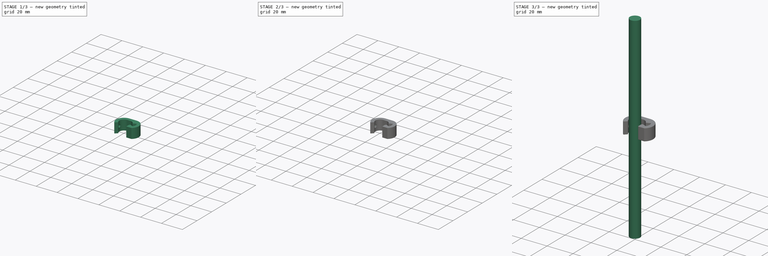
[diagram: build sequence overview — one tinted view per stage of 3, left to right]
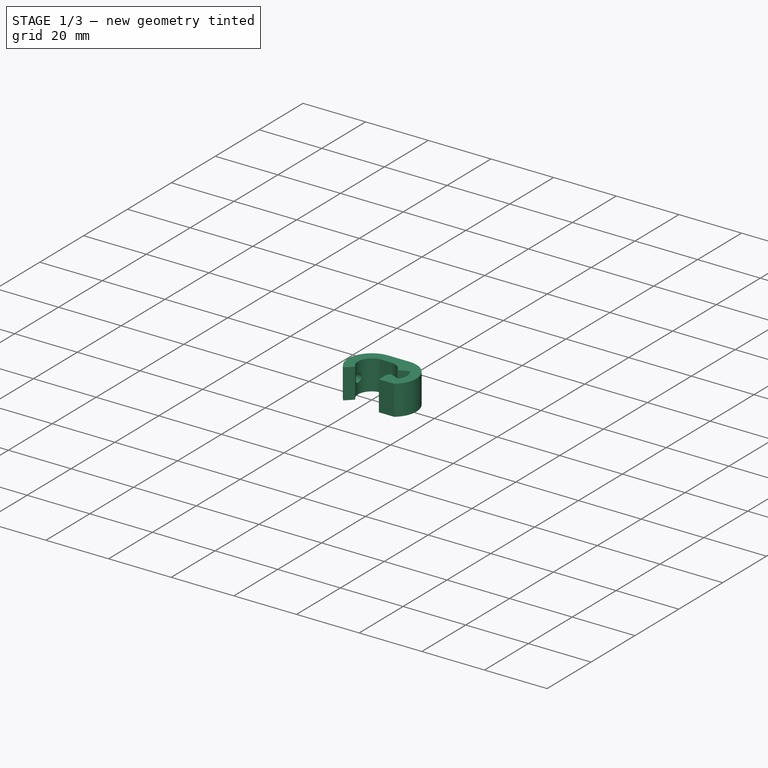
[diagram: stage 1 of 3 — iso view after this stage's code; geometry added in this stage tinted green]
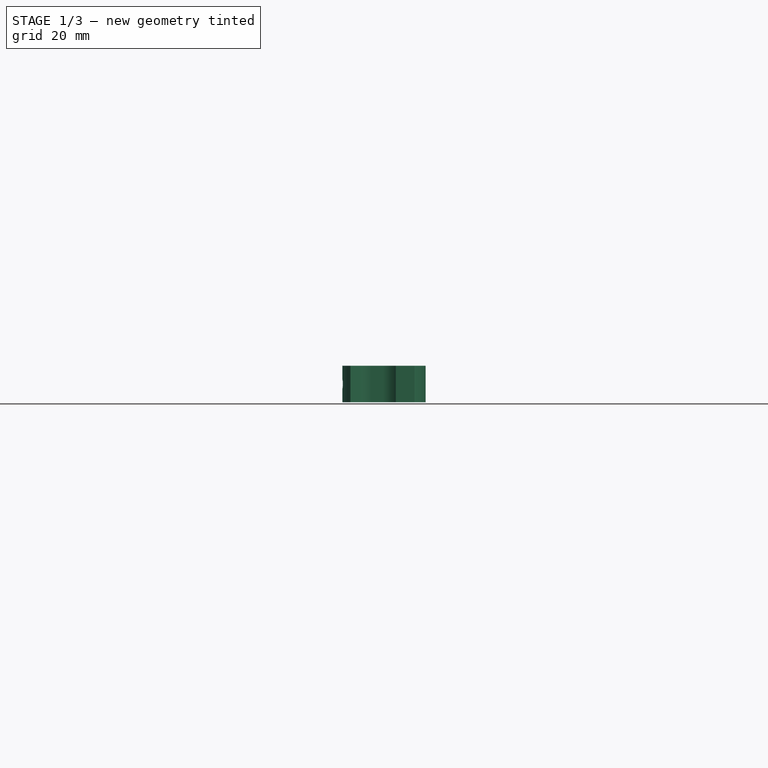
[diagram: stage 1 of 3 — front view after this stage's code; geometry added in this stage tinted green]
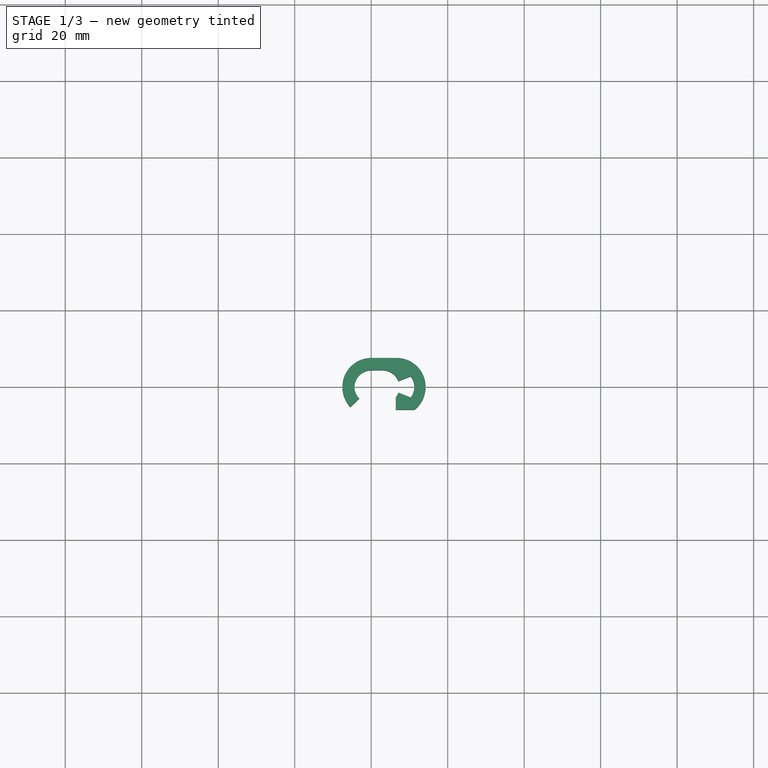
[diagram: stage 1 of 3 — top view after this stage's code; geometry added in this stage tinted green]
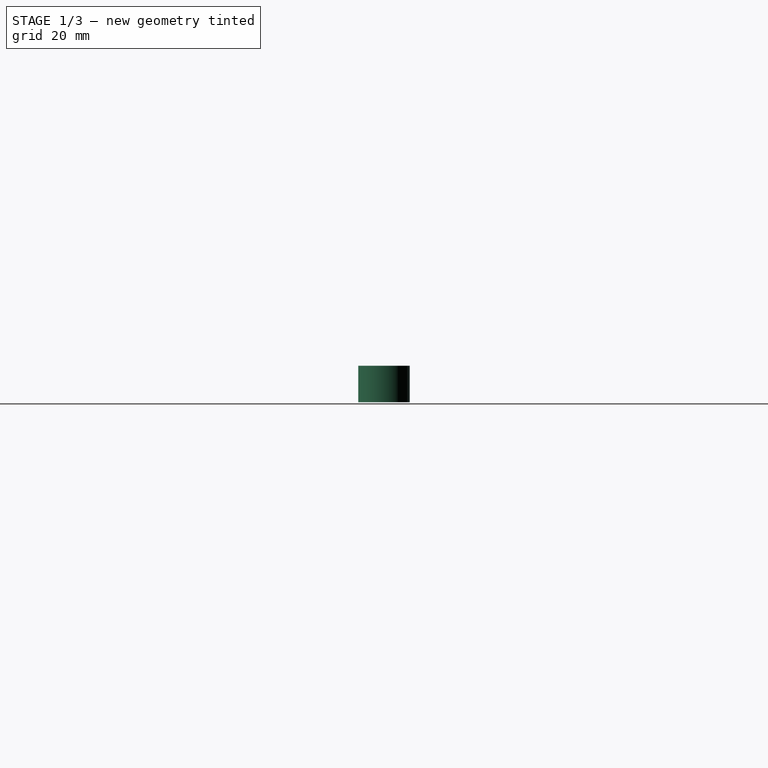
[diagram: stage 1 of 3 — right view after this stage's code; geometry added in this stage tinted green]
FCSTD DOCUMENT  (FreeCAD 0.20R29410 (Git))
Label: Stereotax rod fiber clip v2
License: All rights reserved
LicenseURL: http://en.wikipedia.org/wiki/All_rights_reserved
objects: Sketcher::SketchObject×4, PartDesign::Pad×2, PartDesign::Body×2, Spreadsheet::Sheet×1, PartDesign::Pocket×1, PartDesign::SubtractiveHelix×1, PartDesign::Fillet×1
note: 16 computed .brp shape members not serialized (recipe doc carries the construction recipe); baked Part::Feature solids carry a one-line shape summary decoded from their .brp

FEATURE [PartDesign::Body] Body002  label="Rod"
  Group = -> [Sketch011,Pad003]
  Origin = -> Origin002
  Tip = -> Pad003
FEATURE [Sketcher::SketchObject] Sketch012  label="Clamp profile"
  FullyConstrained = false
  MapMode = 5
  Support = -> [XY_Plane003]
  expr: Constraints[13] = <<ss>>.rodHoleDiameter
  expr: Constraints[24] = 0.12" * 2
  expr: Constraints[26] = <<ss>>.rodDiameter
  expr: Constraints[30] = <<ss>>.fiberJacketDiameter
  expr: Constraints[32] = <<ss>>.paddingThickness
  expr: Constraints[44] = <<ss>>.fiberJacketDiameter * 0.95
  expr: Constraints[49] = <<ss>>.rodDiameter * 0.75
  expr: Constraints[66] = <<ss>>.fiberJacketDiameter * 1.5
  expr: Constraints[69] = <<ss>>.fiberJacketDiameter * 1.25
  expr: Constraints[6] = <<ss>>.fiberJacketDiameter * 1.25
  sketch-geometry (37):
    g0: ArcOfCircle CenterX=0 CenterY=0 CenterZ=0 NormalX=0 NormalY=0 NormalZ=1 AngleXU=0 Radius=4.36563 StartAngle=1.5708 EndAngle=3.91445
    g1: ArcOfCircle CenterX=0 CenterY=0 CenterZ=0 NormalX=0 NormalY=0 NormalZ=1 AngleXU=0 Radius=7.54063 StartAngle=1.5708 EndAngle=3.91445
    g2: LineSegment StartX=-3.12544 StartY=-3.048 StartZ=0 EndX=-5.39849 EndY=-5.26473 EndZ=0
    g3: LineSegment StartX=0 StartY=7.54063 StartZ=0 EndX=3.01625 EndY=7.54063 EndZ=0
    g4: LineSegment StartX=3e-16 StartY=4.36563 StartZ=0 EndX=3.01625 EndY=4.36563 EndZ=0
    g5: ArcOfCircle CenterX=3.01625 CenterY=0 CenterZ=0 NormalX=0 NormalY=0 NormalZ=1 AngleXU=0 Radius=4.36563 StartAngle=0.352723 EndAngle=1.5708
    g6: LineSegment StartX=3.01625 StartY=7.54063 StartZ=0 EndX=3.01625 EndY=0 EndZ=0
    g7: LineSegment StartX=0 StartY=0 StartZ=0 EndX=3.01625 EndY=0 EndZ=0
    g8: LineSegment StartX=0 StartY=7.54063 StartZ=0 EndX=0 EndY=0 EndZ=0
    g9: GeomPoint X=-3.12544 Y=3.048 Z=0
    g10: LineSegment StartX=-3.12544 StartY=3.048 StartZ=0 EndX=-3.12544 EndY=-3.048 EndZ=0
    g11: Circle CenterX=2.52779 CenterY=0 CenterZ=0 NormalX=0 NormalY=0 NormalZ=1 AngleXU=0 Radius=3.96875
    g12: Circle CenterX=8.58838 CenterY=0 CenterZ=0 NormalX=0 NormalY=0 NormalZ=1 AngleXU=0 Radius=1.2065
    g13: LineSegment StartX=8.58838 StartY=0 StartZ=0 EndX=7.38188 EndY=0 EndZ=0
    g14: ArcOfCircle CenterX=6.69766 CenterY=-4e-16 CenterZ=0 NormalX=0 NormalY=0 NormalZ=1 AngleXU=0 Radius=2.97656 StartAngle=5.62965 EndAngle=6.93672
    g15: LineSegment StartX=9.06087 StartY=1.80975 StartZ=0 EndX=10.3212 EndY=2.77495 EndZ=0
    g16: LineSegment StartX=9.06087 StartY=-1.80975 StartZ=0 EndX=10.3212 EndY=-2.77495 EndZ=0
    g17: ArcOfCircle CenterX=6.69766 CenterY=-4e-16 CenterZ=0 NormalX=0 NormalY=0 NormalZ=1 AngleXU=0 Radius=7.54063 StartAngle=5.37392 EndAngle=7.85398
    g18: ArcOfCircle CenterX=6.69766 CenterY=-4e-16 CenterZ=0 NormalX=0 NormalY=0 NormalZ=1 AngleXU=0 Radius=4.56406 StartAngle=5.62965 EndAngle=6.93672
    g19: LineSegment StartX=7.11311 StartY=1.50813 StartZ=0 EndX=10.3212 EndY=2.77495 EndZ=0
    g20: LineSegment StartX=7.11311 StartY=-1.50812 StartZ=0 EndX=10.3212 EndY=-2.77495 EndZ=0
    g21: GeomPoint X=9.67423 Y=0 Z=0
    g22: ArcOfCircle CenterX=3.01625 CenterY=0 CenterZ=0 NormalX=0 NormalY=0 NormalZ=1 AngleXU=0 Radius=4.36563 StartAngle=5.93046 EndAngle=6.63591
    g23: LineSegment StartX=7.38188 StartY=0 StartZ=0 EndX=9.67423 EndY=0 EndZ=0
    g24: GeomPoint X=9.79488 Y=0 Z=0
    g25: ArcOfCircle CenterX=3.01625 CenterY=0 CenterZ=0 NormalX=0 NormalY=0 NormalZ=1 AngleXU=0 Radius=4.36563 StartAngle=5.61266 EndAngle=5.93046
    g26: LineSegment StartX=6.43669 StartY=-2.7128 StartZ=0 EndX=-3.12544 EndY=-3.048 EndZ=0
    g27: LineSegment StartX=10.3212 StartY=-2.77495 StartZ=0 EndX=10.3212 EndY=-5.94995 EndZ=0
    g28: LineSegment StartX=9.06087 StartY=1.80975 StartZ=0 EndX=9.06087 EndY=-1.80975 EndZ=0
    g29: LineSegment StartX=7.11311 StartY=1.50813 StartZ=0 EndX=7.11311 EndY=-1.50812 EndZ=0
    g30: LineSegment StartX=3.01625 StartY=7.54063 StartZ=0 EndX=6.69766 EndY=7.54063 EndZ=0
    g31: LineSegment StartX=6.43669 StartY=-5.94995 StartZ=0 EndX=11.3301 EndY=-5.94995 EndZ=0
    g32: LineSegment StartX=6.43669 StartY=-2.7128 StartZ=0 EndX=3.42044 EndY=-2.7128 EndZ=0
    g33: Circle CenterX=0 CenterY=0 CenterZ=0 NormalX=0 NormalY=0 NormalZ=1 AngleXU=0 Radius=3.96875
    g34: LineSegment StartX=0 StartY=0 StartZ=0 EndX=3.65721 EndY=-1.54137 EndZ=0
    g35: LineSegment StartX=3.65721 StartY=-1.54137 StartZ=0 EndX=6.43669 EndY=-2.7128 EndZ=0
    g36: LineSegment StartX=6.43669 StartY=-2.7128 StartZ=0 EndX=6.43669 EndY=-5.94995 EndZ=0
  constraints (97):
    c: Coincident(g2,g0)
    c: Coincident(g2,g1)
    c: Coincident(g3,g1)
    c: Horizontal(g3)
    c: Coincident(g4,g0)
    c: Horizontal(g4)
    c: DistanceX(g3,g3) = 3.01625
    c: Coincident(g5,g4)
    c: Coincident(g6,g3)
    c: Vertical(g6)
    c: PointOnObject(g4,g6)
    c: Perpendicular(g1,g2)
    c: Distance(g2) = 3.175
    c: Diameter(g0) = 8.73125
    c: Coincident(g7,g1)
    c: Horizontal(g7)
    c: Coincident(g8,g1)
    c: Coincident(g8,g1)
    c: Vertical(g8)
    c: PointOnObject(g0,g8)
    c: Coincident(g0,g1)
    c: Symmetric(g9,g0,g7)
    c: Coincident(g10,g9)
    c: Coincident(g10,g0)
    c: DistanceY(g10,g10) = 6.096
    c: PointOnObject(g11,g7)
    c: Diameter(g11) = 7.9375
    c: Coincident(g13,g12)
    c: PointOnObject(g13,g12)
    c: Horizontal(g13)
    c: Diameter(g12) = 2.413
    c: Coincident(g16,g14)
    c: Distance(g15) = 1.5875
    c: Coincident(g14,g15)
    c: Coincident(g18,g16)
    c: Coincident(g18,g15)
    c: Perpendicular(g14,g15)
    c: Perpendicular(g14,g16)
    c: Coincident(g19,g5)
    c: Symmetric(g14,g14,g7)
    c: PointOnObject(g21,g14)
    c: PointOnObject(g21,g7)
    c: Coincident(g22,g5)
    c: Coincident(g23,g21)
    c: DistanceX(g23,g23) = 2.29235
    c: Coincident(g15,g19)
    c: Coincident(g16,g20)
    c: Coincident(g18,g17)
    c: Coincident(g17,g14)
    c: Diameter(g14) = 5.95312
    c: PointOnObject(g24,g12)
    c: PointOnObject(g24,g7)
    c: Coincident(g6,g7)
    c: Coincident(g5,g22)
    c: PointOnObject(g5,g7)
    c: Equal(g0,g5)
    c: Equal(g17,g1)
    c: Coincident(g25,g5)
    c: Coincident(g25,g22)
    c: Coincident(g26,g25)
    c: Coincident(g26,g0)
    c: Coincident(g20,g22)
    c: Coincident(g27,g18)
    c: Vertical(g27)
    c: Coincident(g28,g14)
    c: Coincident(g28,g14)
    c: DistanceY(g28,g28) = 3.6195
    c: Coincident(g29,g5)
    c: Coincident(g29,g20)
    c: Distance(g29) = 3.01625
    c: Vertical(g29)
    c: PointOnObject(g12,g7)
    c: PointOnObject(g13,g22)
    c: Coincident(g23,g13)
    c: DistanceY(g0) = 0
    c: DistanceX(g0) = 0
    c: Coincident(g30,g3)
    c: Horizontal(g30)
    c: Coincident(g17,g30)
    c: Equal(g27,g2)
    c: PointOnObject(g27,g31)
    c: Horizontal(g31)
    c: Coincident(g17,g31)
    c: Coincident(g32,g25)
    c: Horizontal(g32)
    c: Equal(g32,g3)
    c: Coincident(g33,g0)
    c: Equal(g33,g11)
    c: Coincident(g34,g0)
    c: PointOnObject(g34,g33)
    c: Coincident(g35,g34)
    c: Coincident(g35,g25)
    c: Parallel(g35,g34)
    c: Equal(g35,g3)
    c: Coincident(g36,g25)
    c: Coincident(g31,g36)
    c: Vertical(g36)
FEATURE [PartDesign::Pad] Pad004
  Direction = (0,0,1)
  Length = 9.525
  Length2 = 10
  Midplane = true
  Profile = -> Sketch012
  ReferenceAxis = -> Sketch012 [N_Axis]
  Type = 0
  expr: Length = 0.375"
FEATURE [PartDesign::Pocket] Pocket
  BaseFeature = -> Pad004
  Direction = (-1,2e-16,-3e-16)
  Length = 5
  Length2 = 5
  Profile = -> Sketch006
  ReferenceAxis = -> Sketch006 [N_Axis]
  Type = 1
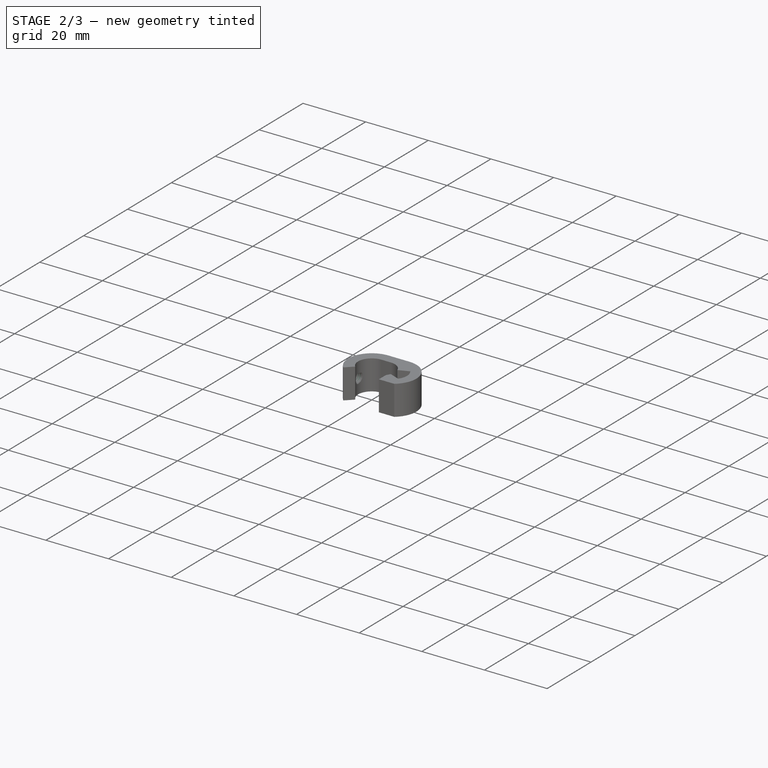
[diagram: stage 2 of 3 — iso view after this stage's code; geometry added in this stage tinted green]
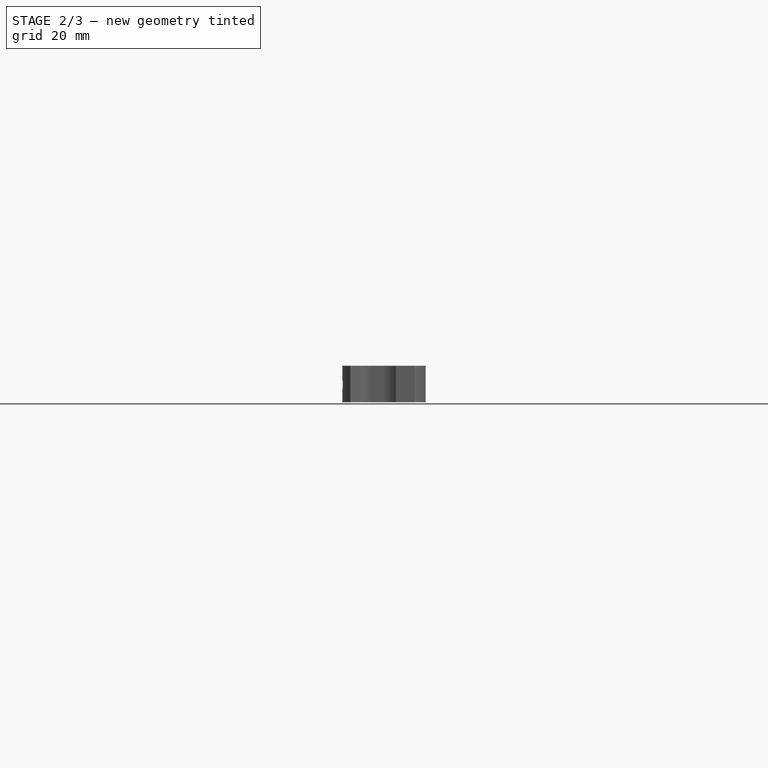
[diagram: stage 2 of 3 — front view after this stage's code; geometry added in this stage tinted green]
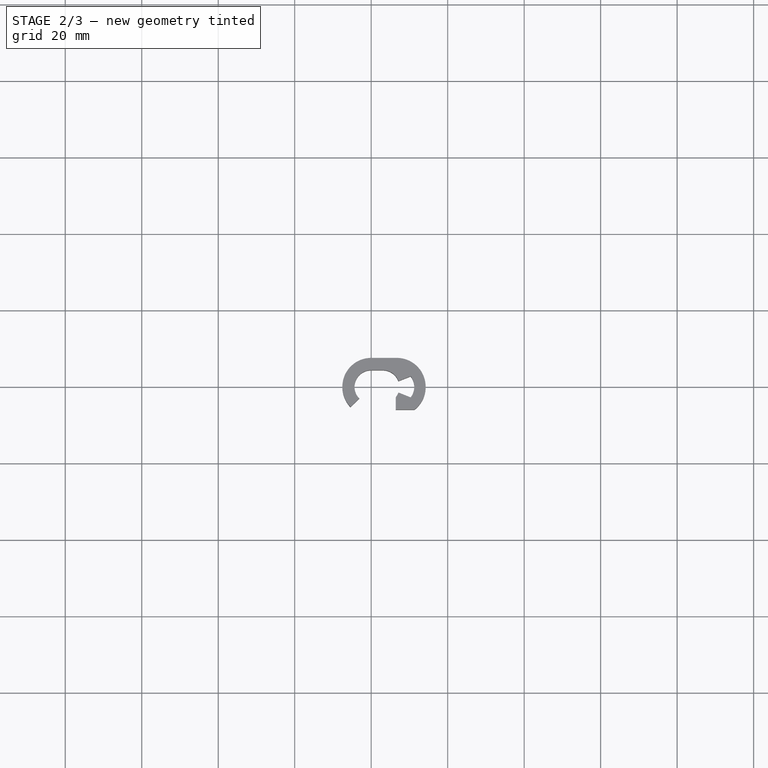
[diagram: stage 2 of 3 — top view after this stage's code; geometry added in this stage tinted green]
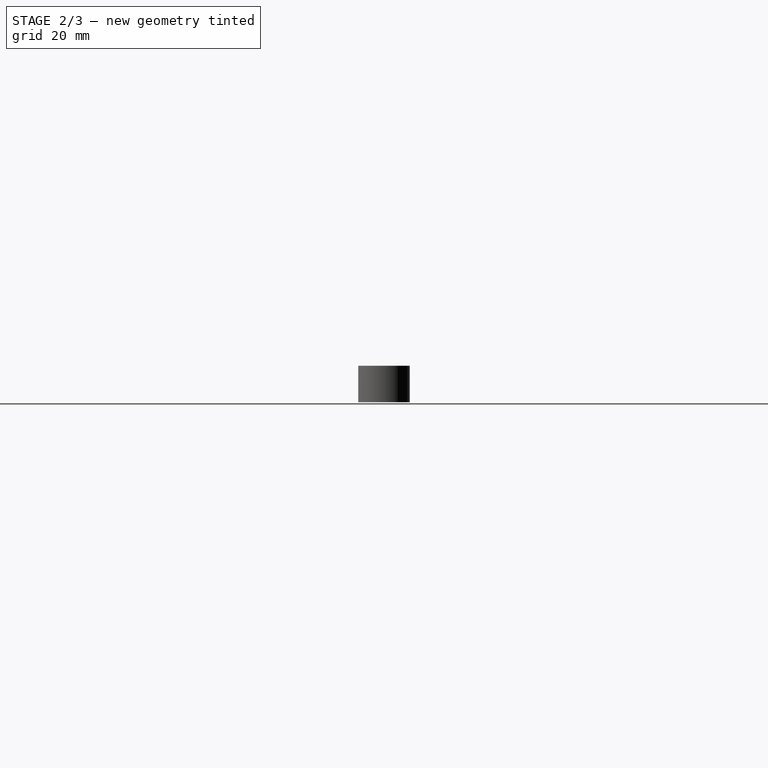
[diagram: stage 2 of 3 — right view after this stage's code; geometry added in this stage tinted green]
FEATURE [PartDesign::SubtractiveHelix] SubtractiveHelix
  Angle = 0
  Axis = (-1,0,0)
  Base = (-3.175,0,0)
  BaseFeature = -> Pocket
  Growth = 0
  HasBeenEdited = true
  Height = 5.08
  LeftHanded = false
  Mode = 0
  Outside = false
  Pitch = 0.635
  Profile = -> Sketch003
  ReferenceAxis = -> Sketch003 [V_Axis]
  Turns = 8
  expr: Pitch = 1" / 40
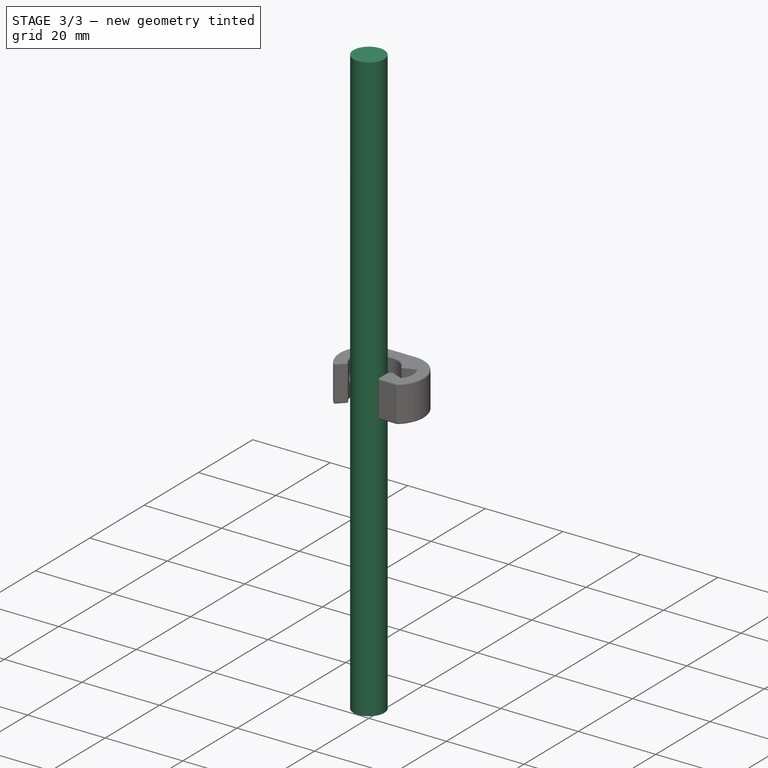
[diagram: stage 3 of 3 — iso view after this stage's code; geometry added in this stage tinted green]
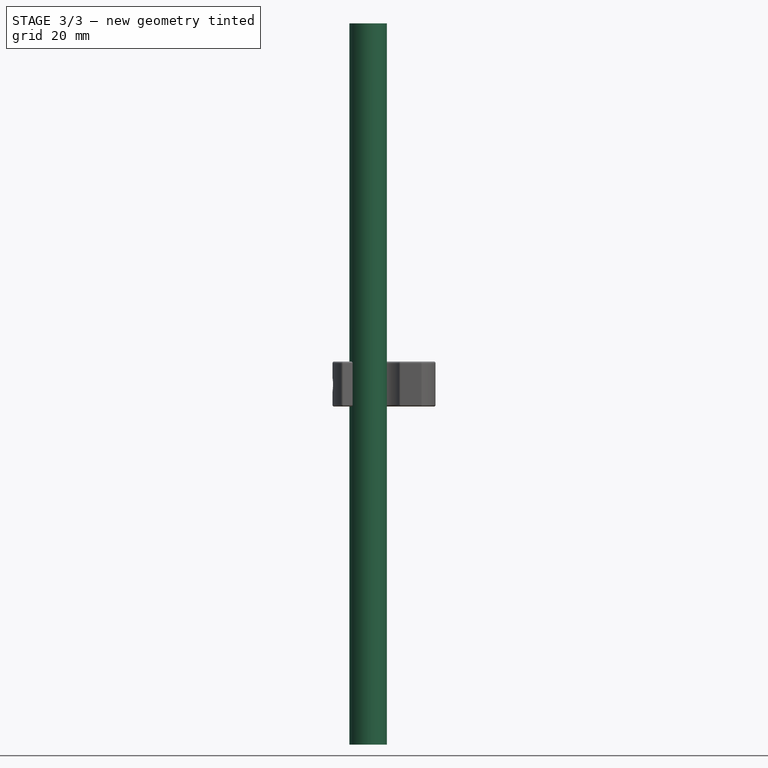
[diagram: stage 3 of 3 — front view after this stage's code; geometry added in this stage tinted green]
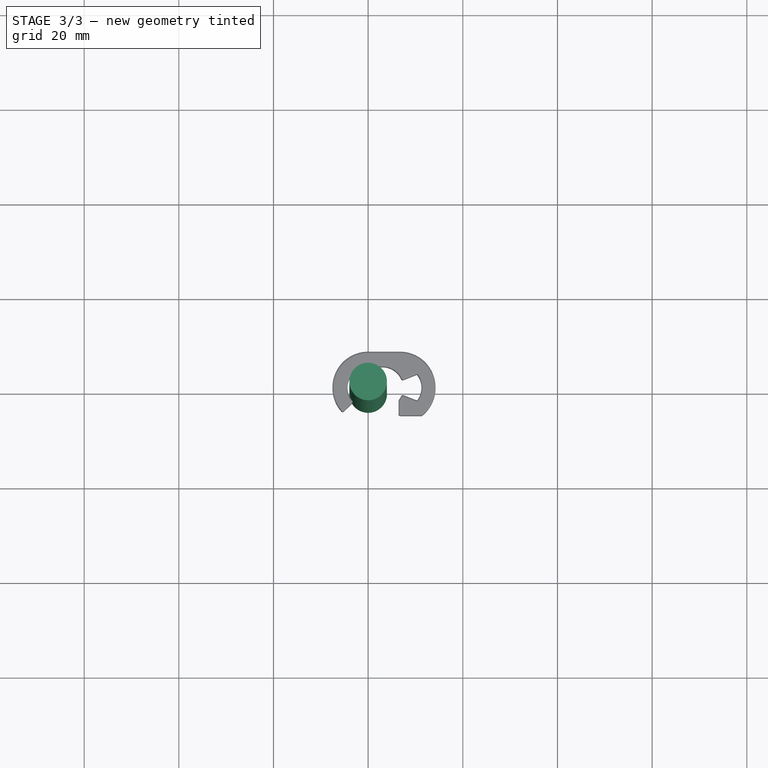
[diagram: stage 3 of 3 — top view after this stage's code; geometry added in this stage tinted green]
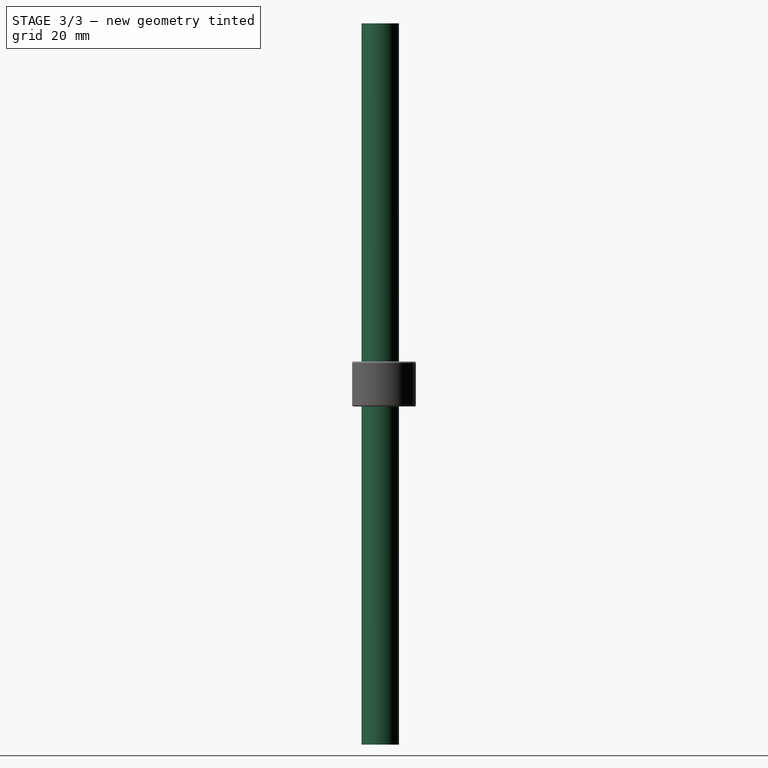
[diagram: stage 3 of 3 — right view after this stage's code; geometry added in this stage tinted green]
FEATURE [Spreadsheet::Sheet] Spreadsheet  label="ss"
  cells = A2=Rod diameter; B2(rodDiameter)==5" / 16; A3=Rod hole diameter; B3(rodHoleDiameter)==rodDiameter * 1.1; A4=Padding thickness; B4(paddingThickness)==1" / 16; A5=Fit tolerance; B5(fitTolerance)==0.005"; A6=Fiber jacket diameter; B6(fiberJacketDiameter)==0.095"; A7=Clearance hole diameter; B7(clearanceHoleDiameter)==2 * (<<4-40 thread>>.Constraints.MajorRadius + <<4-40 thread>>.Constraints.Tolerance) + fitTolerance; A8=Tap hole diameter; B8(tapHoleDiameter)==2 * (<<4-40 thread>>.Constraints.MinorRadius + <<4-40 thread>>.Constraints.Tolerance); A9=Screw offset; B9(screwOffset)==rodHoleDiameter / 2 + 0.125" + 0.112" / 2; A10=Captive thread depth 1; B10(captiveThreadDepth1)==0.18"; A11=Captive clearance depth; B11(captiveClearanceDepth)==fiberJacketDiameter * 1.5 + 0.05"
FEATURE [Sketcher::SketchObject] Sketch003  label="4-40 thread"
  FullyConstrained = true
  MapMode = 5
  Placement = pos=(-3.175,0,0) rot=(0,0,1;1.5708rad)
  expr: .Constraints.MajorRadius = 0.112" / 2
  expr: .Constraints.MinorRadius = .Constraints.MajorRadius - 1.082532 * .Constraints.Pitch / 2
  expr: .Constraints.Pitch = 1" / 40
  expr: Constraints[27] = .Constraints.Tolerance
  expr: Constraints[29] = .Constraints.Pitch / 4
  sketch-geometry (13):
    g0: LineSegment StartX=0 StartY=0.635 StartZ=0 EndX=0 EndY=0 EndZ=0
    g1: LineSegment StartX=1.0787 StartY=0.15875 StartZ=0 EndX=1.4224 EndY=0.357188 EndZ=0
    g2: LineSegment StartX=1.4224 StartY=0.357188 StartZ=0 EndX=1.4224 EndY=0.436562 EndZ=0
    g3: LineSegment StartX=1.4224 StartY=0.436562 StartZ=0 EndX=1.0787 EndY=0.635 EndZ=0
    g4: LineSegment StartX=0.824696 StartY=0.635 StartZ=0 EndX=1.1684 EndY=0.436562 EndZ=0
    g5: LineSegment StartX=1.1684 StartY=0.436562 StartZ=0 EndX=1.1684 EndY=0.357188 EndZ=0
    g6: LineSegment StartX=1.1684 StartY=0.357188 StartZ=0 EndX=0.824696 EndY=0.15875 EndZ=0
    g7: LineSegment StartX=1.3327 StartY=0.15875 StartZ=0 EndX=1.6764 EndY=0.357188 EndZ=0
    g8: LineSegment StartX=1.6764 StartY=0.436562 StartZ=0 EndX=1.3327 EndY=0.635 EndZ=0
    g9: LineSegment StartX=1.6764 StartY=0.436562 StartZ=0 EndX=1.6764 EndY=0.357188 EndZ=0
    g10: LineSegment StartX=1.3327 StartY=0.635 StartZ=0 EndX=0 EndY=0.635 EndZ=0
    g11: LineSegment StartX=0 StartY=0.635 StartZ=0 EndX=0 EndY=0.15875 EndZ=0
    g12: LineSegment StartX=0 StartY=0.15875 StartZ=0 EndX=1.3327 EndY=0.15875 EndZ=0
  constraints (40):
    c: Vertical(g0)
    c: DistanceY(g0,g0) = 0.635  'Pitch'
    c: Coincident(g1,g2)
    c: Vertical(g2)
    c: Coincident(g2,g3)
    c: DistanceY(g3,g0) = 0
    c: DistanceX(g0,g2) = 1.4224  'MajorRadius'
    c: DistanceX(g0,g3) = 1.0787  'MinorRadius'
    c: DistanceX(g1,g3) = 0
    c: Angle(g3,g1) = 1.0472
    c: Equal(g3,g1)
    c: Coincident(g0,g-1)
    c: Coincident(g4,g5)
    c: Coincident(g5,g6)
    c: Vertical(g5)
    c: Equal(g4,g3)
    c: Parallel(g4,g3)
    c: Equal(g6,g1)
    c: Parallel(g6,g1)
    c: Equal(g5,g2)
    c: DistanceY(g4,g3) = 0
    c: Equal(g8,g3)
    c: Parallel(g8,g3)
    c: Equal(g7,g1)
    c: Parallel(g7,g1)
    c: DistanceY(g3,g8) = 0
    c: DistanceX(g4,g3) = 0.254  'Tolerance'
    c: DistanceX(g3,g8) = 0.254
    c: DistanceY(g7,g1) = 0
    c: DistanceY(g1) = 0.15875
    c: Coincident(g9,g8)
    c: Coincident(g9,g7)
    c: Vertical(g9)
    c: Coincident(g8,g10)
    c: Coincident(g10,g0)
    c: Coincident(g10,g11)
    c: PointOnObject(g11,g0)
    c: Coincident(g11,g12)
    c: Coincident(g12,g7)
    c: Horizontal(g12)
FEATURE [Sketcher::SketchObject] Sketch006  label="Screw hole"
  FullyConstrained = true
  MapMode = 5
  Placement = pos=(0,0,0) rot=(0.57735,0.57735,0.57735;2.0944rad)
  Support = -> [YZ_Plane003]
  expr: Constraints[0] = <<ss>>.tapHoleDiameter
  sketch-geometry (1):
    g0: Circle CenterX=0 CenterY=0 CenterZ=0 NormalX=0 NormalY=0 NormalZ=1 AngleXU=0 Radius=1.3327
  constraints (2):
    c: Diameter(g0) = 2.66539
    c: Coincident(g0,g-1)
FEATURE [Sketcher::SketchObject] Sketch011  label="Rod profile"
  FullyConstrained = true
  MapMode = 5
  Support = -> [XY_Plane002]
  expr: Constraints[1] = <<ss>>.rodDiameter
  sketch-geometry (1):
    g0: Circle CenterX=0 CenterY=0 CenterZ=0 NormalX=0 NormalY=0 NormalZ=1 AngleXU=0 Radius=3.96875
  constraints (2):
    c: Coincident(g0,g-1)
    c: Diameter(g0) = 7.9375
FEATURE [PartDesign::Pad] Pad003
  Direction = (0,0,1)
  Length = 152.4
  Length2 = 10
  Midplane = true
  Profile = -> Sketch011
  ReferenceAxis = -> Sketch011 [N_Axis]
  Type = 0
FEATURE [PartDesign::Fillet] Fillet
  Base = -> SubtractiveHelix [Edge53,Edge65,Edge64,Edge4,Edge39,Face3,Edge67,Face4,Edge66]
  BaseFeature = -> SubtractiveHelix
  Radius = 0.381
  SupportTransform = false
  UseAllEdges = false
FEATURE [PartDesign::Body] Body003  label="Clamp"
  Group = -> [Sketch012,Pad004,Sketch003,Sketch006,Pocket,SubtractiveHelix,Fillet]
  Origin = -> Origin003
  Tip = -> Fillet
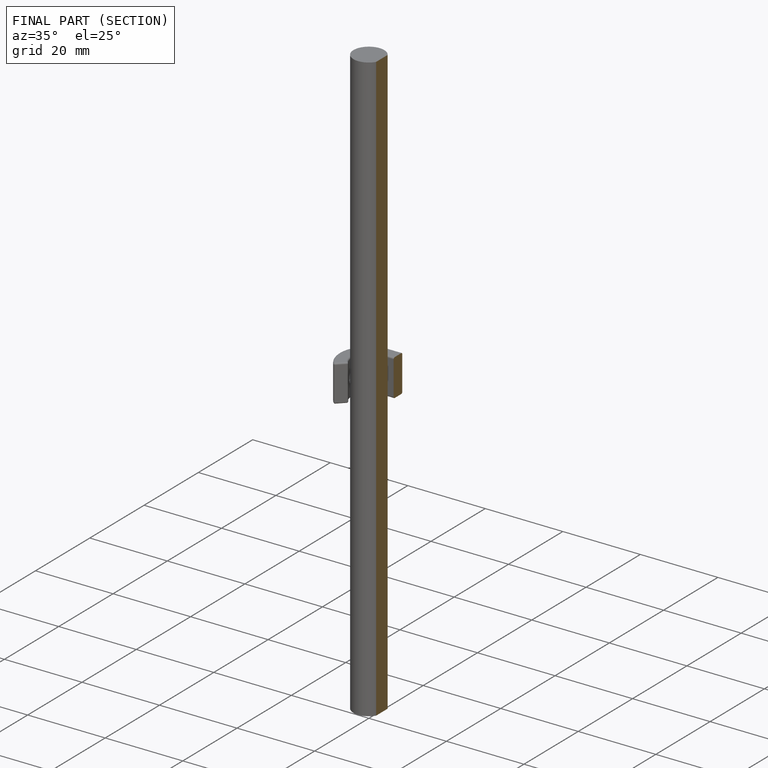
[diagram: finished part — half-section view (interior)]
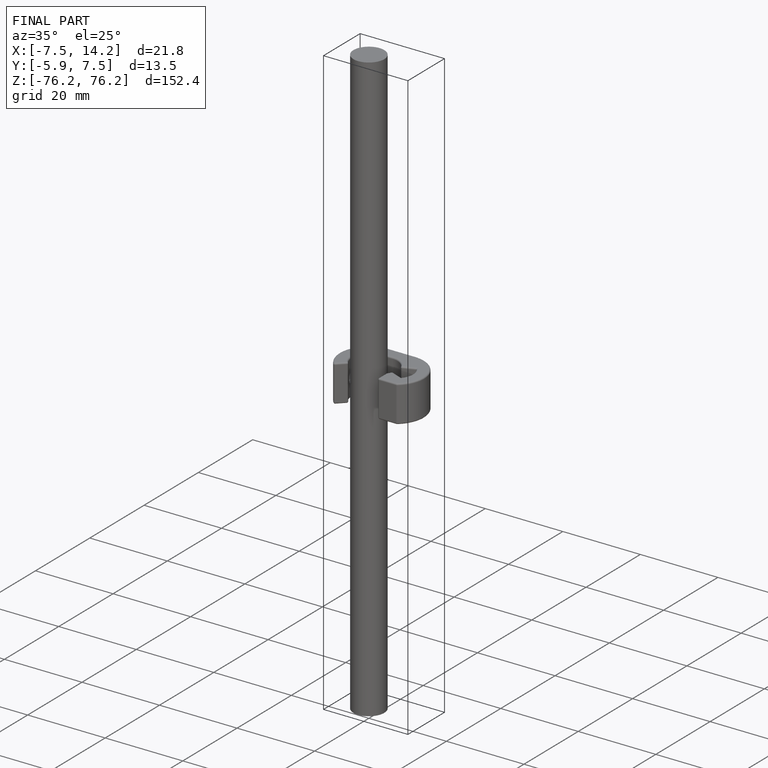
[diagram: finished part — iso view with bounding-box wireframe]
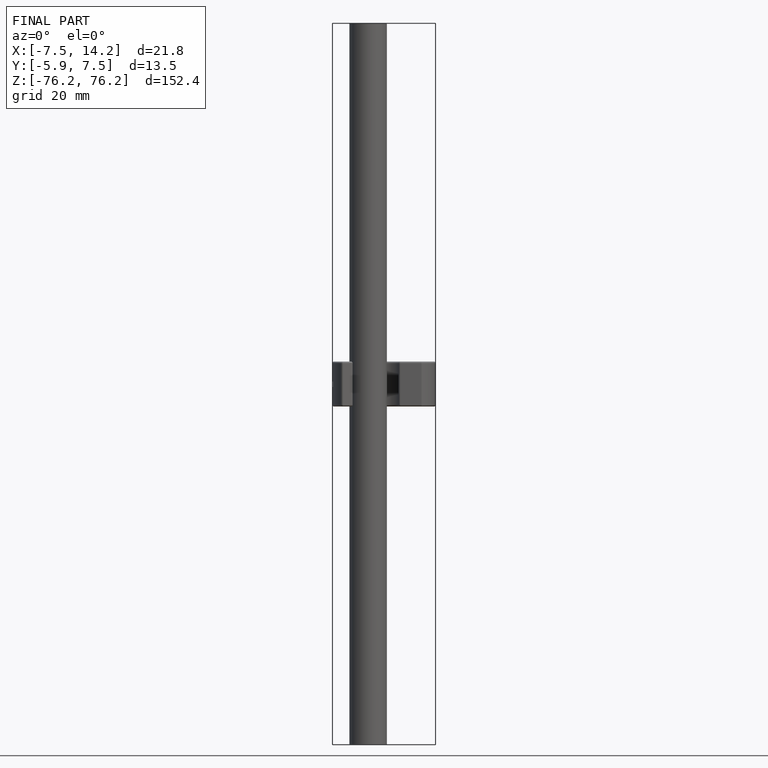
[diagram: finished part — front view with bounding-box wireframe]
